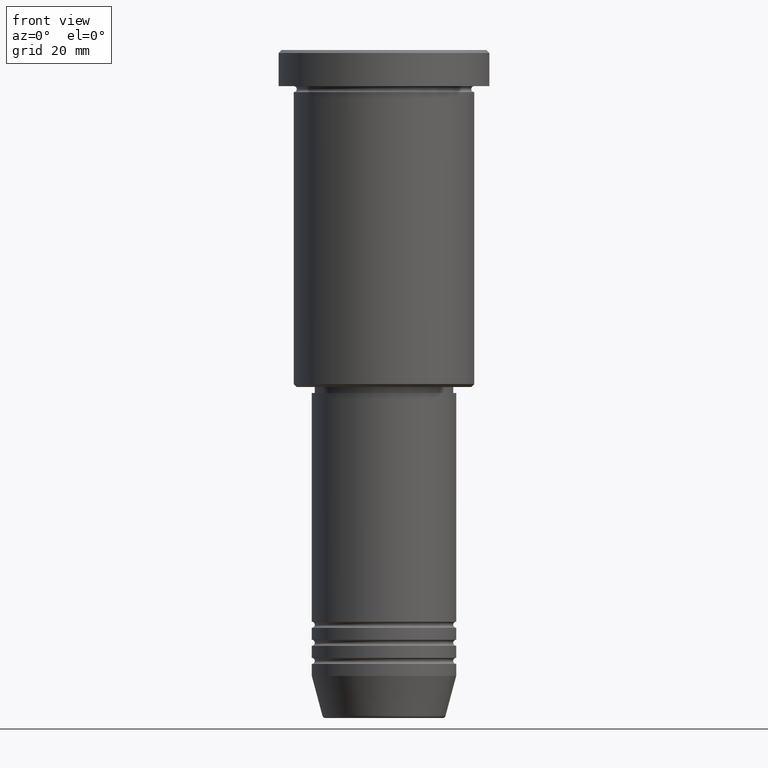
[diagram: clean part render]
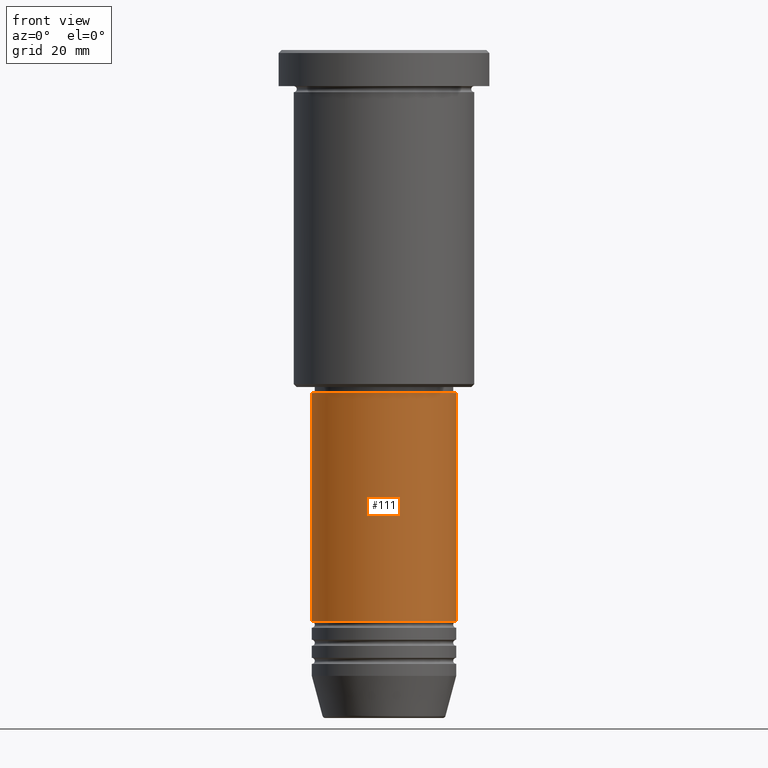
[diagram: same view with one face highlighted and labeled with its STEP entity id]
A machine part, front view. The second image highlights one B-rep face of the part: STEP entity #111.
In plain terms, the highlighted cylindrical surface (partial cylindrical patch) has radius 12 mm, axis along (-0, -0, 1).
Its self-contained STEP definition (entity closure, byte-faithful):
#39 = CYLINDRICAL_SURFACE ( 'NONE', #1053, 12.00000000000000000 ) ;
#48 = VERTEX_POINT ( 'NONE', #95 ) ;
#50 = AXIS2_PLACEMENT_3D ( 'NONE', #873, #974, #408 ) ;
#71 = DIRECTION ( 'NONE',  ( -0.000000000000000000, -0.000000000000000000, 1.000000000000000000 ) ) ;
#95 = CARTESIAN_POINT ( 'NONE',  ( 12.00000000000000000, 0.000000000000000000, -57.00000000000000000 ) ) ;
#111 = ADVANCED_FACE ( 'NONE', ( #1035 ), #39, .T. ) ;
#117 = CARTESIAN_POINT ( 'NONE',  ( 12.00000000000000000, 0.000000000000000000, 0.000000000000000000 ) ) ;
#132 = DIRECTION ( 'NONE',  ( -0.000000000000000000, -0.000000000000000000, 1.000000000000000000 ) ) ;
#142 = VECTOR ( 'NONE', #195, 1000.000000000000000 ) ;
#143 = VERTEX_POINT ( 'NONE', #599 ) ;
#195 = DIRECTION ( 'NONE',  ( -0.000000000000000000, -0.000000000000000000, 1.000000000000000000 ) ) ;
#196 = VECTOR ( 'NONE', #71, 1000.000000000000000 ) ;
#208 = CARTESIAN_POINT ( 'NONE',  ( 0.000000000000000000, 0.000000000000000000, -57.00000000000000000 ) ) ;
#327 = ORIENTED_EDGE ( 'NONE', *, *, #537, .F. ) ;
#368 = CARTESIAN_POINT ( 'NONE',  ( 12.00000000000000000, 0.000000000000000000, -94.99999999999997158 ) ) ;
#391 = ORIENTED_EDGE ( 'NONE', *, *, #1149, .T. ) ;
#403 = ORIENTED_EDGE ( 'NONE', *, *, #754, .F. ) ;
#408 = DIRECTION ( 'NONE',  ( 1.000000000000000000, 0.000000000000000000, 0.000000000000000000 ) ) ;
#490 = CIRCLE ( 'NONE', #716, 12.00000000000000000 ) ;
#493 = EDGE_LOOP ( 'NONE', ( #327, #391, #768, #403 ) ) ;
#537 = EDGE_CURVE ( 'NONE', #143, #836, #611, .T. ) ;
#599 = CARTESIAN_POINT ( 'NONE',  ( -12.00000000000000000, 1.469576158976823947E-15, -94.99999999999997158 ) ) ;
#611 = LINE ( 'NONE', #805, #196 ) ;
#623 = EDGE_CURVE ( 'NONE', #830, #48, #1108, .T. ) ;
#716 = AXIS2_PLACEMENT_3D ( 'NONE', #208, #1031, #924 ) ;
#753 = CARTESIAN_POINT ( 'NONE',  ( -12.00000000000000000, 1.469576158976823947E-15, -57.00000000000000000 ) ) ;
#754 = EDGE_CURVE ( 'NONE', #836, #48, #490, .T. ) ;
#768 = ORIENTED_EDGE ( 'NONE', *, *, #623, .T. ) ;
#805 = CARTESIAN_POINT ( 'NONE',  ( -12.00000000000000000, 1.469576158976823947E-15, 0.000000000000000000 ) ) ;
#830 = VERTEX_POINT ( 'NONE', #368 ) ;
#836 = VERTEX_POINT ( 'NONE', #753 ) ;
#873 = CARTESIAN_POINT ( 'NONE',  ( 0.000000000000000000, 0.000000000000000000, -94.99999999999997158 ) ) ;
#924 = DIRECTION ( 'NONE',  ( 1.000000000000000000, 0.000000000000000000, 0.000000000000000000 ) ) ;
#952 = CARTESIAN_POINT ( 'NONE',  ( 0.000000000000000000, 0.000000000000000000, 0.000000000000000000 ) ) ;
#955 = DIRECTION ( 'NONE',  ( 1.000000000000000000, 0.000000000000000000, 0.000000000000000000 ) ) ;
#974 = DIRECTION ( 'NONE',  ( -0.000000000000000000, -0.000000000000000000, 1.000000000000000000 ) ) ;
#1031 = DIRECTION ( 'NONE',  ( -0.000000000000000000, -0.000000000000000000, 1.000000000000000000 ) ) ;
#1035 = FACE_OUTER_BOUND ( 'NONE', #493, .T. ) ;
#1053 = AXIS2_PLACEMENT_3D ( 'NONE', #952, #132, #955 ) ;
#1079 = CIRCLE ( 'NONE', #50, 12.00000000000000000 ) ;
#1108 = LINE ( 'NONE', #117, #142 ) ;
#1149 = EDGE_CURVE ( 'NONE', #143, #830, #1079, .T. ) ;